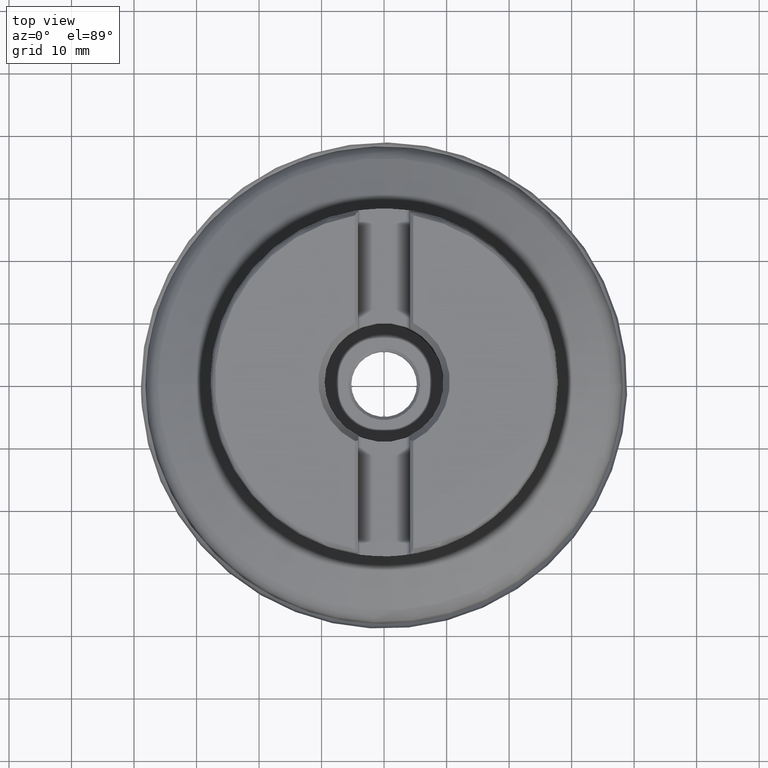
[diagram: clean part render]
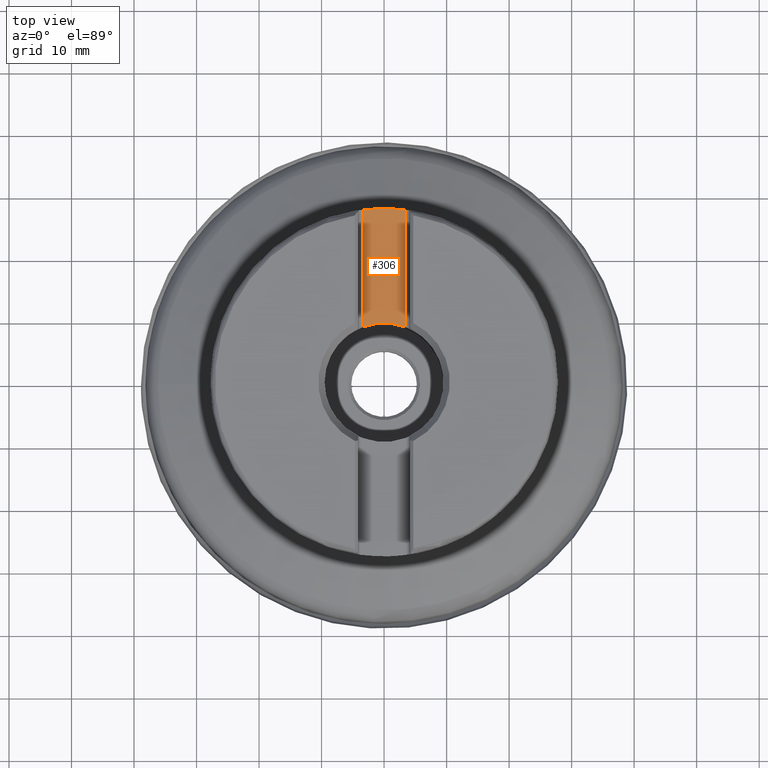
[diagram: same view with one face highlighted and labeled with its STEP entity id]
A machine part, top view. The second image highlights one B-rep face of the part: STEP entity #306.
In plain terms, the highlighted planar face has unit normal (0, 0, 1).
Its self-contained STEP definition (entity closure, byte-faithful):
#172=PLANE('',#1135);
#188=FACE_OUTER_BOUND('',#494,.T.);
#226=LINE('',#2030,#262);
#227=LINE('',#2031,#263);
#262=VECTOR('',#1326,1.);
#263=VECTOR('',#1327,1.);
#306=ADVANCED_FACE('',(#188),#172,.T.);
#494=EDGE_LOOP('',(#667,#668,#669,#670));
#667=ORIENTED_EDGE('',*,*,#876,.F.);
#668=ORIENTED_EDGE('',*,*,#937,.T.);
#669=ORIENTED_EDGE('',*,*,#864,.F.);
#670=ORIENTED_EDGE('',*,*,#938,.T.);
#779=VERTEX_POINT('',#1661);
#780=VERTEX_POINT('',#1663);
#791=VERTEX_POINT('',#1746);
#792=VERTEX_POINT('',#1748);
#864=EDGE_CURVE('',#779,#780,#967,.T.);
#876=EDGE_CURVE('',#791,#792,#971,.T.);
#937=EDGE_CURVE('',#791,#780,#226,.T.);
#938=EDGE_CURVE('',#779,#792,#227,.T.);
#967=CIRCLE('',#1075,27.813);
#971=CIRCLE('',#1080,9.525);
#1075=AXIS2_PLACEMENT_3D('',#1662,#1188,#1189);
#1080=AXIS2_PLACEMENT_3D('',#1747,#1202,#1203);
#1135=AXIS2_PLACEMENT_3D('',#2032,#1328,#1329);
#1188=DIRECTION('',(-1.17145536458252E-15,0.,-1.));
#1189=DIRECTION('',(1.,0.,-1.24741917518916E-15));
#1202=DIRECTION('',(1.17145536458252E-15,0.,1.));
#1203=DIRECTION('',(1.,0.,-1.45698559662094E-15));
#1326=DIRECTION('',(0.,1.,0.));
#1327=DIRECTION('',(0.,-1.,0.));
#1328=DIRECTION('',(1.17145536458252E-15,0.,1.));
#1329=DIRECTION('',(1.,0.,-1.17267306976032E-15));
#1661=CARTESIAN_POINT('',(-3.37499999999996,27.6074689893876,35.25));
#1662=CARTESIAN_POINT('',(4.1293801601534E-14,0.,35.25));
#1663=CARTESIAN_POINT('',(3.37500000000004,27.6074689893876,35.25));
#1746=CARTESIAN_POINT('',(3.37500000000004,8.90701970358212,35.25));
#1747=CARTESIAN_POINT('',(4.1293801601534E-14,0.,35.25));
#1748=CARTESIAN_POINT('',(-3.37499999999996,8.90701970358212,35.25));
#2030=CARTESIAN_POINT('',(3.37500000000004,27.4978607167903,35.25));
#2031=CARTESIAN_POINT('',(-3.37499999999996,8.5612499087458,35.25));
#2032=CARTESIAN_POINT('',(-4.17499999999996,-50.,35.25));